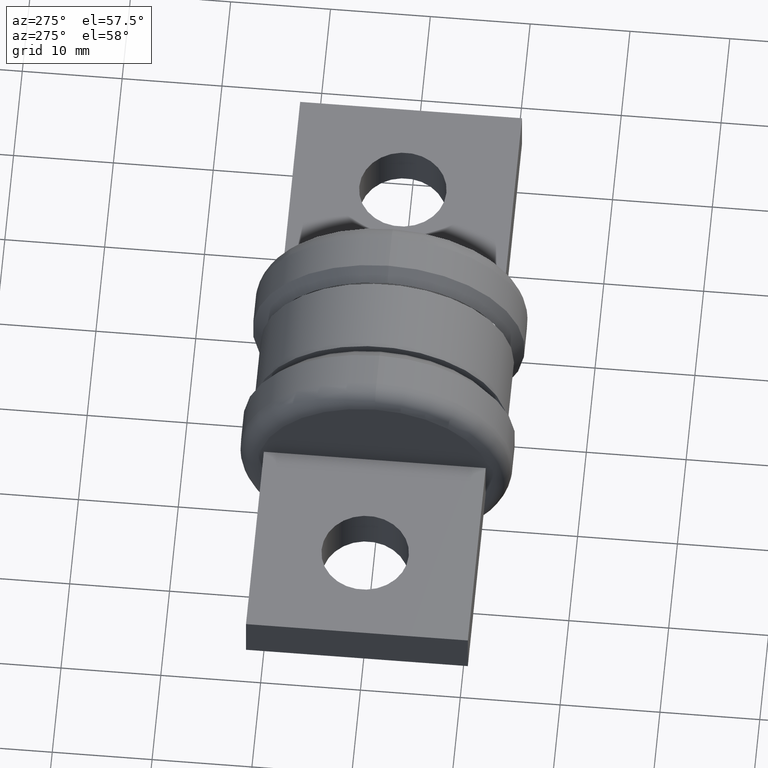
[diagram: clean part render]
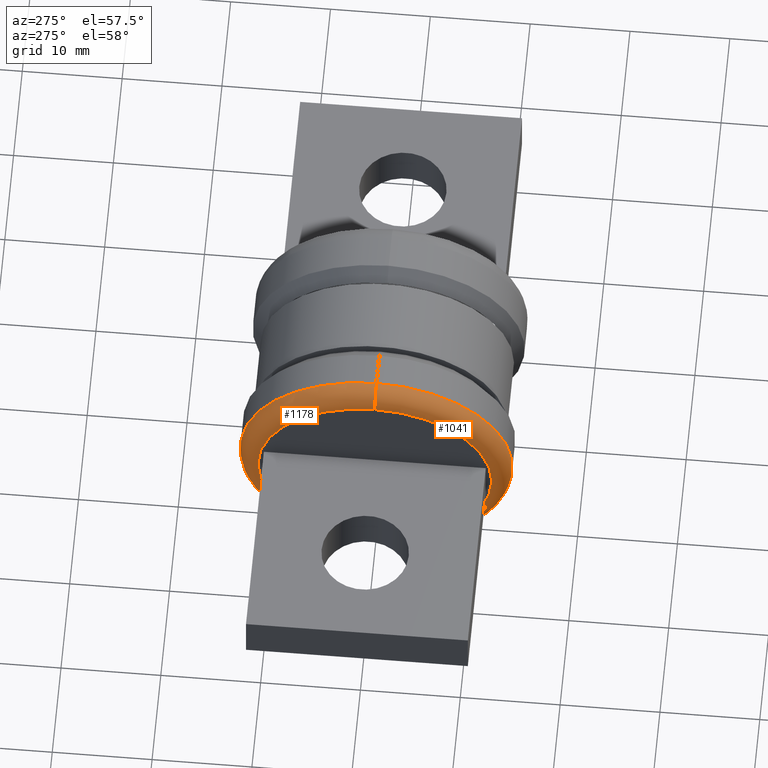
[diagram: same view with one multi-face feature highlighted, each face labeled with its STEP entity id]
A machine part, auxiliary view. The highlighted faces form ONE feature: a constant-radius fillet chain: 2 tangent blend faces with common blend radius 1.905 mm. The faces share edges in the B-rep.
Their STEP definitions:
[1] entity #1041 (Torus):
#10 = VERTEX_POINT ( 'NONE', #610 ) ;
#40 = CARTESIAN_POINT ( 'NONE',  ( -0.1417143321225403900, 3.027525205683978300E-016, -0.4614999999999999100 ) ) ;
#47 = AXIS2_PLACEMENT_3D ( 'NONE', #217, #141, #72 ) ;
#72 = DIRECTION ( 'NONE',  ( 0.0000000000000000000, 0.0000000000000000000, 1.000000000000000000 ) ) ;
#91 = CARTESIAN_POINT ( 'NONE',  ( -0.06671433212254052100, 1.672295448649777700E-016, -0.5364999999999999800 ) ) ;
#141 = DIRECTION ( 'NONE',  ( -1.000000000000000000, 3.491481338843133400E-015, -4.930380657631323800E-032 ) ) ;
#146 = ORIENTED_EDGE ( 'NONE', *, *, #1062, .F. ) ;
#164 = DIRECTION ( 'NONE',  ( -3.491481338843133400E-015, -1.000000000000000000, 1.224646799147353700E-016 ) ) ;
#217 = CARTESIAN_POINT ( 'NONE',  ( -0.1417143321225403900, 4.947929460524678100E-016, 0.0000000000000000000 ) ) ;
#238 = AXIS2_PLACEMENT_3D ( 'NONE', #1351, #164, #812 ) ;
#245 = CARTESIAN_POINT ( 'NONE',  ( -0.06671433212254052100, 2.329318456392332500E-016, 0.0000000000000000000 ) ) ;
#279 = TOROIDAL_SURFACE ( 'NONE', #282, 0.4614999999999999100, 0.07499999999999999700 ) ;
#282 = AXIS2_PLACEMENT_3D ( 'NONE', #245, #1391, #726 ) ;
#409 = CARTESIAN_POINT ( 'NONE',  ( -0.1417143321225403900, 4.947929460524678100E-016, 0.4614999999999999100 ) ) ;
#464 = DIRECTION ( 'NONE',  ( 1.000000000000000000, -3.491481338843133400E-015, 4.930380657631323800E-032 ) ) ;
#558 = ORIENTED_EDGE ( 'NONE', *, *, #1205, .F. ) ;
#610 = CARTESIAN_POINT ( 'NONE',  ( -0.06671433212254052100, 2.329318456392333000E-016, 0.5364999999999999800 ) ) ;
#616 = EDGE_CURVE ( 'NONE', #1416, #1354, #1533, .T. ) ;
#697 = ORIENTED_EDGE ( 'NONE', *, *, #616, .T. ) ;
#726 = DIRECTION ( 'NONE',  ( -4.930380657631304100E-032, 5.653234934468059100E-032, 1.000000000000000000 ) ) ;
#812 = DIRECTION ( 'NONE',  ( 1.000000000000000000, -3.491481338843133400E-015, 0.0000000000000000000 ) ) ;
#827 = CIRCLE ( 'NONE', #1621, 0.07499999999999998300 ) ;
#988 = AXIS2_PLACEMENT_3D ( 'NONE', #1309, #464, #1337 ) ;
#996 = DIRECTION ( 'NONE',  ( 3.491481338843133400E-015, 1.000000000000000000, -4.930380657631323800E-032 ) ) ;
#1041 = ADVANCED_FACE ( 'NONE', ( #1429 ), #279, .T. ) ;
#1062 = EDGE_CURVE ( 'NONE', #1514, #10, #827, .T. ) ;
#1065 = EDGE_CURVE ( 'NONE', #10, #1354, #1652, .T. ) ;
#1126 = DIRECTION ( 'NONE',  ( -1.000000000000000000, 3.491481338843134100E-015, 0.0000000000000000000 ) ) ;
#1191 = CARTESIAN_POINT ( 'NONE',  ( -0.06671433212254052100, 2.329318456392333000E-016, 0.4614999999999999100 ) ) ;
#1194 = CIRCLE ( 'NONE', #47, 0.4614999999999999100 ) ;
#1205 = EDGE_CURVE ( 'NONE', #1416, #1514, #1194, .T. ) ;
#1309 = CARTESIAN_POINT ( 'NONE',  ( -0.06671433212254052100, 2.329318456392332500E-016, 0.0000000000000000000 ) ) ;
#1320 = EDGE_LOOP ( 'NONE', ( #558, #697, #1619, #146 ) ) ;
#1337 = DIRECTION ( 'NONE',  ( 0.0000000000000000000, 5.653234934468040500E-032, 1.000000000000000000 ) ) ;
#1351 = CARTESIAN_POINT ( 'NONE',  ( -0.06671433212254052100, 1.764143958585829100E-016, -0.4614999999999999100 ) ) ;
#1354 = VERTEX_POINT ( 'NONE', #91 ) ;
#1391 = DIRECTION ( 'NONE',  ( 1.000000000000000000, -3.491481338843133400E-015, 4.930380657631323800E-032 ) ) ;
#1416 = VERTEX_POINT ( 'NONE', #40 ) ;
#1429 = FACE_OUTER_BOUND ( 'NONE', #1320, .T. ) ;
#1514 = VERTEX_POINT ( 'NONE', #409 ) ;
#1533 = CIRCLE ( 'NONE', #238, 0.07499999999999999700 ) ;
#1619 = ORIENTED_EDGE ( 'NONE', *, *, #1065, .F. ) ;
#1621 = AXIS2_PLACEMENT_3D ( 'NONE', #1191, #996, #1126 ) ;
#1652 = CIRCLE ( 'NONE', #988, 0.5364999999999999800 ) ;
[2] entity #1178 (Torus):
#10 = VERTEX_POINT ( 'NONE', #610 ) ;
#40 = CARTESIAN_POINT ( 'NONE',  ( -0.1417143321225403900, 3.027525205683978300E-016, -0.4614999999999999100 ) ) ;
#48 = CIRCLE ( 'NONE', #1161, 0.5364999999999999800 ) ;
#91 = CARTESIAN_POINT ( 'NONE',  ( -0.06671433212254052100, 1.672295448649777700E-016, -0.5364999999999999800 ) ) ;
#162 = EDGE_CURVE ( 'NONE', #1514, #1416, #1296, .T. ) ;
#164 = DIRECTION ( 'NONE',  ( -3.491481338843133400E-015, -1.000000000000000000, 1.224646799147353700E-016 ) ) ;
#238 = AXIS2_PLACEMENT_3D ( 'NONE', #1351, #164, #812 ) ;
#255 = ORIENTED_EDGE ( 'NONE', *, *, #616, .F. ) ;
#409 = CARTESIAN_POINT ( 'NONE',  ( -0.1417143321225403900, 4.947929460524678100E-016, 0.4614999999999999100 ) ) ;
#411 = DIRECTION ( 'NONE',  ( -1.000000000000000000, 3.491481338843133400E-015, -4.930380657631323800E-032 ) ) ;
#502 = ORIENTED_EDGE ( 'NONE', *, *, #162, .F. ) ;
#568 = AXIS2_PLACEMENT_3D ( 'NONE', #1378, #411, #1426 ) ;
#610 = CARTESIAN_POINT ( 'NONE',  ( -0.06671433212254052100, 2.329318456392333000E-016, 0.5364999999999999800 ) ) ;
#616 = EDGE_CURVE ( 'NONE', #1416, #1354, #1533, .T. ) ;
#723 = TOROIDAL_SURFACE ( 'NONE', #1048, 0.4614999999999999100, 0.07499999999999999700 ) ;
#812 = DIRECTION ( 'NONE',  ( 1.000000000000000000, -3.491481338843133400E-015, 0.0000000000000000000 ) ) ;
#827 = CIRCLE ( 'NONE', #1621, 0.07499999999999998300 ) ;
#967 = DIRECTION ( 'NONE',  ( -4.930380657631304100E-032, 5.653234934468059100E-032, 1.000000000000000000 ) ) ;
#996 = DIRECTION ( 'NONE',  ( 3.491481338843133400E-015, 1.000000000000000000, -4.930380657631323800E-032 ) ) ;
#1048 = AXIS2_PLACEMENT_3D ( 'NONE', #1624, #1591, #967 ) ;
#1062 = EDGE_CURVE ( 'NONE', #1514, #10, #827, .T. ) ;
#1114 = ORIENTED_EDGE ( 'NONE', *, *, #1062, .T. ) ;
#1126 = DIRECTION ( 'NONE',  ( -1.000000000000000000, 3.491481338843134100E-015, 0.0000000000000000000 ) ) ;
#1161 = AXIS2_PLACEMENT_3D ( 'NONE', #1331, #1543, #1405 ) ;
#1178 = ADVANCED_FACE ( 'NONE', ( #1278 ), #723, .T. ) ;
#1189 = ORIENTED_EDGE ( 'NONE', *, *, #1491, .F. ) ;
#1191 = CARTESIAN_POINT ( 'NONE',  ( -0.06671433212254052100, 2.329318456392333000E-016, 0.4614999999999999100 ) ) ;
#1232 = EDGE_LOOP ( 'NONE', ( #255, #502, #1114, #1189 ) ) ;
#1278 = FACE_OUTER_BOUND ( 'NONE', #1232, .T. ) ;
#1296 = CIRCLE ( 'NONE', #568, 0.4614999999999999100 ) ;
#1331 = CARTESIAN_POINT ( 'NONE',  ( -0.06671433212254052100, 2.329318456392332500E-016, 0.0000000000000000000 ) ) ;
#1351 = CARTESIAN_POINT ( 'NONE',  ( -0.06671433212254052100, 1.764143958585829100E-016, -0.4614999999999999100 ) ) ;
#1354 = VERTEX_POINT ( 'NONE', #91 ) ;
#1378 = CARTESIAN_POINT ( 'NONE',  ( -0.1417143321225403900, 4.947929460524678100E-016, 0.0000000000000000000 ) ) ;
#1405 = DIRECTION ( 'NONE',  ( 0.0000000000000000000, 5.653234934468040500E-032, 1.000000000000000000 ) ) ;
#1416 = VERTEX_POINT ( 'NONE', #40 ) ;
#1426 = DIRECTION ( 'NONE',  ( 0.0000000000000000000, 0.0000000000000000000, 1.000000000000000000 ) ) ;
#1491 = EDGE_CURVE ( 'NONE', #1354, #10, #48, .T. ) ;
#1514 = VERTEX_POINT ( 'NONE', #409 ) ;
#1533 = CIRCLE ( 'NONE', #238, 0.07499999999999999700 ) ;
#1543 = DIRECTION ( 'NONE',  ( 1.000000000000000000, -3.491481338843133400E-015, 4.930380657631323800E-032 ) ) ;
#1591 = DIRECTION ( 'NONE',  ( 1.000000000000000000, -3.491481338843133400E-015, 4.930380657631323800E-032 ) ) ;
#1621 = AXIS2_PLACEMENT_3D ( 'NONE', #1191, #996, #1126 ) ;
#1624 = CARTESIAN_POINT ( 'NONE',  ( -0.06671433212254052100, 2.329318456392332500E-016, 0.0000000000000000000 ) ) ;